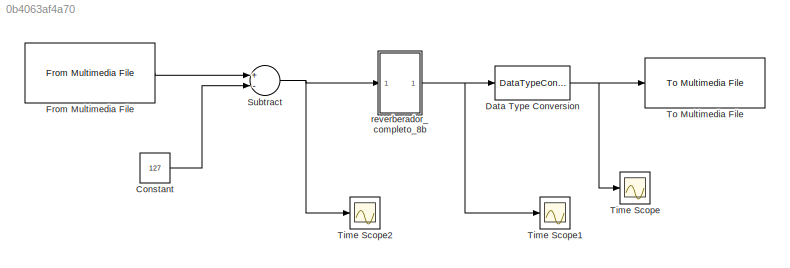
MODEL slx_0b4063af4a70
KIND model
CONFIG AbsTol = auto
CONFIG EnableMultiTasking = off
CONFIG FixedStep = auto
CONFIG MaxStep = auto
CONFIG MinStep = auto
CONFIG RelTol = 1e-3
CONFIG SampleTimeConstraint = Unconstrained
CONFIG Solver = VariableStepAuto
CONFIG SolverName = VariableStepAuto
CONFIG StartTime = 0.0
CONFIG StopTime = 10.0
BLOCK [Constant] Constant
  OutDataTypeStr = int8
  Value = 127
BLOCK [DataTypeConversion] Data Type Conversion
  OutDataTypeStr = int16
  RndMeth = Floor
  SaturateOnIntegerOverflow = off
BLOCK [Reference] From Multimedia File  REF=dspvision/From Multimedia File
  Ports = [0, 1]
  SourceBlock = dspvision/From Multimedia File
  SourceProductBaseCode = VP
  SourceProductName = Computer Vision System Toolbox
  SourceType = From Multimedia File
BLOCK [Sum] Subtract
  AccumDataTypeStr = int8
  InputSameDT = off
  Inputs = +-
  OutDataTypeStr = int8
  Ports = [2, 1]
  SaturateOnIntegerOverflow = off
BLOCK [Scope] Time Scope
  DefaultConfigurationName = spbscopes.TimeScopeBlockCfg
  Floating = off
  NumInputPorts = 1
  Ports = [1]
  ScopeSpecificationString = spbscopes.TimeScopeBlockCfg('CurrentConfiguration', extmgr.ConfigurationSet(extmgr.Configuration('Core','General UI',true),extmgr.Configuration('Core','Source UI',true),extmgr.Configuration('Sources','WiredSimulink',true),extmgr.Configuration('Visuals','Time Domain',true,'DisplayPropertyDefaults',struct('MinYLimReal','-159.875','MaxYLimReal','158.875','YLabelReal','Amplitude','MinYLimMag',' 0.0000...<+1366ch>
  UserDataPersistent = on
BLOCK [Scope] Time Scope1
  DefaultConfigurationName = spbscopes.TimeScopeBlockCfg
  Floating = off
  NumInputPorts = 1
  Ports = [1]
  ScopeSpecificationString = spbscopes.TimeScopeBlockCfg('CurrentConfiguration', extmgr.ConfigurationSet(extmgr.Configuration('Core','General UI',true),extmgr.Configuration('Core','Source UI',true),extmgr.Configuration('Sources','WiredSimulink',true,'DataLoggingVariableName','ScopeData1'),extmgr.Configuration('Visuals','Time Domain',true,'DisplayPropertyDefaults',struct('MinYLimReal','-159.875','MaxYLimReal','158.875','YLabel...<+1441ch>
  UserDataPersistent = on
BLOCK [Scope] Time Scope2
  DefaultConfigurationName = spbscopes.TimeScopeBlockCfg
  Floating = off
  NumInputPorts = 1
  Ports = [1]
  ScopeSpecificationString = spbscopes.TimeScopeBlockCfg('CurrentConfiguration', extmgr.ConfigurationSet(extmgr.Configuration('Core','General UI',true),extmgr.Configuration('Core','Source UI',true),extmgr.Configuration('Sources','WiredSimulink',true,'DataLoggingVariableName','ScopeData2'),extmgr.Configuration('Visuals','Time Domain',true,'DisplayPropertyDefaults',struct('MinYLimReal','-155.75','MaxYLimReal','131.75','YLabelRe...<+1418ch>
  UserDataPersistent = on
BLOCK [Reference] To Multimedia File  REF=dspvision/To Multimedia File
  Ports = [1]
  SourceBlock = dspvision/To Multimedia File
  SourceProductBaseCode = VP
  SourceProductName = Computer Vision System Toolbox
  SourceType = To Multimedia File
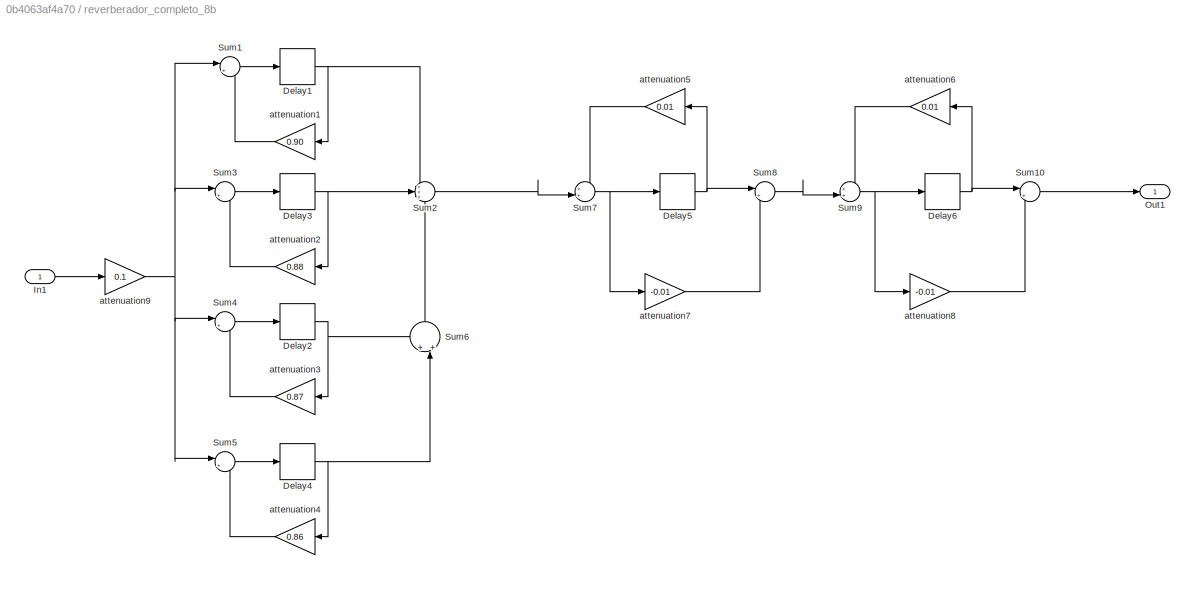
BLOCK [SubSystem] reverberador_completo_8b 
  Ports = [1, 1]
  RequestExecContextInheritance = off
BLOCK [Delay] reverberador_completo_8b /Delay1
  DelayLength = 1310
  DelayLengthUpperLimit = 10000
  InitialCondition = 0
  InputPortMap = u0
  InputProcessing = Columns as channels (frame based)
  Ports = [1, 1]
BLOCK [Delay] reverberador_completo_8b /Delay2
  DelayLength = 1812
  DelayLengthUpperLimit = 10000
  InitialCondition = 0
  InputPortMap = u0
  InputProcessing = Columns as channels (frame based)
  Ports = [1, 1]
BLOCK [Delay] reverberador_completo_8b /Delay3
  DelayLength = 1636
  DelayLengthUpperLimit = 10000
  InitialCondition = 0
  InputPortMap = u0
  InputProcessing = Columns as channels (frame based)
  Ports = [1, 1]
BLOCK [Delay] reverberador_completo_8b /Delay4
  DelayLength = 1927
  DelayLengthUpperLimit = 10000
  InitialCondition = 0
  InputPortMap = u0
  InputProcessing = Columns as channels (frame based)
  Ports = [1, 1]
BLOCK [Delay] reverberador_completo_8b /Delay5
  DelayLength = 4270
  DelayLengthUpperLimit = 10000
  InitialCondition = 0
  InputPortMap = u0
  InputProcessing = Columns as channels (frame based)
  Ports = [1, 1]
BLOCK [Delay] reverberador_completo_8b /Delay6
  DelayLength = 1452
  DelayLengthUpperLimit = 10000
  InitialCondition = 0
  InputPortMap = u0
  InputProcessing = Columns as channels (frame based)
  Ports = [1, 1]
BLOCK [Inport] reverberador_completo_8b /In1
  IconDisplay = Port number
  OutDataTypeStr = int8
BLOCK [Outport] reverberador_completo_8b /Out1
  IconDisplay = Port number
  OutDataTypeStr = int8
BLOCK [Sum] reverberador_completo_8b /Sum1
  IconShape = round
  InputSameDT = off
  Inputs = |++
  OutDataTypeStr = Inherit: Inherit via internal rule
  Ports = [2, 1]
  SaturateOnIntegerOverflow = off
BLOCK [Sum] reverberador_completo_8b /Sum10
  AccumDataTypeStr = int8
  IconShape = round
  InputSameDT = off
  Inputs = |++
  OutDataTypeStr = Inherit: Inherit via internal rule
  Ports = [2, 1]
  SaturateOnIntegerOverflow = off
BLOCK [Sum] reverberador_completo_8b /Sum2
  IconShape = round
  InputSameDT = off
  Inputs = +++
  OutDataTypeStr = Inherit: Inherit via internal rule
  Ports = [3, 1]
  SaturateOnIntegerOverflow = off
BLOCK [Sum] reverberador_completo_8b /Sum3
  IconShape = round
  InputSameDT = off
  Inputs = |++
  OutDataTypeStr = Inherit: Inherit via internal rule
  Ports = [2, 1]
  SaturateOnIntegerOverflow = off
BLOCK [Sum] reverberador_completo_8b /Sum4
  IconShape = round
  InputSameDT = off
  Inputs = |++
  OutDataTypeStr = Inherit: Inherit via internal rule
  Ports = [2, 1]
  SaturateOnIntegerOverflow = off
BLOCK [Sum] reverberador_completo_8b /Sum5
  AccumDataTypeStr = int8
  IconShape = round
  InputSameDT = off
  Inputs = |++
  OutDataTypeStr = Inherit: Inherit via internal rule
  Ports = [2, 1]
  SaturateOnIntegerOverflow = off
BLOCK [Sum] reverberador_completo_8b /Sum6
  IconShape = round
  InputSameDT = off
  Inputs = +|+||
  OutDataTypeStr = Inherit: Inherit via internal rule
  Ports = [2, 1]
  SaturateOnIntegerOverflow = off
BLOCK [Sum] reverberador_completo_8b /Sum7
  IconShape = round
  InputSameDT = off
  Inputs = ++||
  OutDataTypeStr = Inherit: Inherit via internal rule
  Ports = [2, 1]
  SaturateOnIntegerOverflow = off
BLOCK [Sum] reverberador_completo_8b /Sum8
  IconShape = round
  InputSameDT = off
  Inputs = |++
  OutDataTypeStr = Inherit: Inherit via internal rule
  Ports = [2, 1]
  SaturateOnIntegerOverflow = off
BLOCK [Sum] reverberador_completo_8b /Sum9
  IconShape = round
  InputSameDT = off
  Inputs = ++||
  OutDataTypeStr = Inherit: Inherit via internal rule
  Ports = [2, 1]
  SaturateOnIntegerOverflow = off
BLOCK [Gain] reverberador_completo_8b /attenuation1
  Gain = 0.90
  OutDataTypeStr = int8
  ParamDataTypeStr = Inherit: Inherit via internal rule
  RndMeth = Round
  SaturateOnIntegerOverflow = off
BLOCK [Gain] reverberador_completo_8b /attenuation2
  Gain = 0.88
  OutDataTypeStr = int8
  ParamDataTypeStr = Inherit: Inherit via internal rule
  RndMeth = Round
  SaturateOnIntegerOverflow = off
BLOCK [Gain] reverberador_completo_8b /attenuation3
  Gain = 0.87
  OutDataTypeStr = int8
  ParamDataTypeStr = Inherit: Inherit via internal rule
  RndMeth = Round
  SaturateOnIntegerOverflow = off
BLOCK [Gain] reverberador_completo_8b /attenuation4
  Gain = 0.86
  OutDataTypeStr = int8
  ParamDataTypeStr = Inherit: Inherit via internal rule
  SaturateOnIntegerOverflow = off
BLOCK [Gain] reverberador_completo_8b /attenuation5
  Gain = 0.01
  OutDataTypeStr = int8
  ParamDataTypeStr = Inherit: Inherit via internal rule
  RndMeth = Round
  SaturateOnIntegerOverflow = off
BLOCK [Gain] reverberador_completo_8b /attenuation6
  Gain = 0.01
  OutDataTypeStr = int8
  ParamDataTypeStr = Inherit: Inherit via internal rule
  RndMeth = Round
  SaturateOnIntegerOverflow = off
BLOCK [Gain] reverberador_completo_8b /attenuation7
  Gain = -0.01
  OutDataTypeStr = int8
  ParamDataTypeStr = Inherit: Inherit via internal rule
  RndMeth = Round
  SaturateOnIntegerOverflow = off
BLOCK [Gain] reverberador_completo_8b /attenuation8
  Gain = -0.01
  OutDataTypeStr = int8
  ParamDataTypeStr = Inherit: Inherit via internal rule
  RndMeth = Round
  SaturateOnIntegerOverflow = off
BLOCK [Gain] reverberador_completo_8b /attenuation9
  Gain = 0.1
  OutDataTypeStr = int8
  ParamDataTypeStr = Inherit: Inherit via internal rule
  RndMeth = Round
LINE Constant:1 -> Subtract:2
NET Data Type Conversion:1 -> Time Scope:1, To Multimedia File:1
LINE From Multimedia File:1 -> Subtract:1
NET Subtract:1 -> Time Scope2:1, reverberador_completo_8b :1
NET reverberador_completo_8b /Delay1:1 -> reverberador_completo_8b /Sum2:1, reverberador_completo_8b /attenuation1:1
NET reverberador_completo_8b /Delay2:1 -> reverberador_completo_8b /Sum6:1, reverberador_completo_8b /attenuation3:1
NET reverberador_completo_8b /Delay3:1 -> reverberador_completo_8b /Sum2:2, reverberador_completo_8b /attenuation2:1
NET reverberador_completo_8b /Delay4:1 -> reverberador_completo_8b /Sum6:2, reverberador_completo_8b /attenuation4:1
NET reverberador_completo_8b /Delay5:1 -> reverberador_completo_8b /Sum8:1, reverberador_completo_8b /attenuation5:1
NET reverberador_completo_8b /Delay6:1 -> reverberador_completo_8b /Sum10:1, reverberador_completo_8b /attenuation6:1
LINE reverberador_completo_8b /In1:1 -> reverberador_completo_8b /attenuation9:1
LINE reverberador_completo_8b /Sum10:1 -> reverberador_completo_8b /Out1:1
LINE reverberador_completo_8b /Sum1:1 -> reverberador_completo_8b /Delay1:1
LINE reverberador_completo_8b /Sum2:1 -> reverberador_completo_8b /Sum7:2
LINE reverberador_completo_8b /Sum3:1 -> reverberador_completo_8b /Delay3:1
LINE reverberador_completo_8b /Sum4:1 -> reverberador_completo_8b /Delay2:1
LINE reverberador_completo_8b /Sum5:1 -> reverberador_completo_8b /Delay4:1
LINE reverberador_completo_8b /Sum6:1 -> reverberador_completo_8b /Sum2:3
NET reverberador_completo_8b /Sum7:1 -> reverberador_completo_8b /Delay5:1, reverberador_completo_8b /attenuation7:1
LINE reverberador_completo_8b /Sum8:1 -> reverberador_completo_8b /Sum9:2
NET reverberador_completo_8b /Sum9:1 -> reverberador_completo_8b /Delay6:1, reverberador_completo_8b /attenuation8:1
LINE reverberador_completo_8b /attenuation1:1 -> reverberador_completo_8b /Sum1:2
LINE reverberador_completo_8b /attenuation2:1 -> reverberador_completo_8b /Sum3:2
LINE reverberador_completo_8b /attenuation3:1 -> reverberador_completo_8b /Sum4:2
LINE reverberador_completo_8b /attenuation4:1 -> reverberador_completo_8b /Sum5:2
LINE reverberador_completo_8b /attenuation5:1 -> reverberador_completo_8b /Sum7:1
LINE reverberador_completo_8b /attenuation6:1 -> reverberador_completo_8b /Sum9:1
LINE reverberador_completo_8b /attenuation7:1 -> reverberador_completo_8b /Sum8:2
LINE reverberador_completo_8b /attenuation8:1 -> reverberador_completo_8b /Sum10:2
NET reverberador_completo_8b /attenuation9:1 -> reverberador_completo_8b /Sum1:1, reverberador_completo_8b /Sum3:1, reverberador_completo_8b /Sum4:1, reverberador_completo_8b /Sum5:1
NET reverberador_completo_8b :1 -> Data Type Conversion:1, Time Scope1:1
note: NET lines group one-source signal fan-out (src -> all destinations, sorted); 1:1 wires keep LINE
